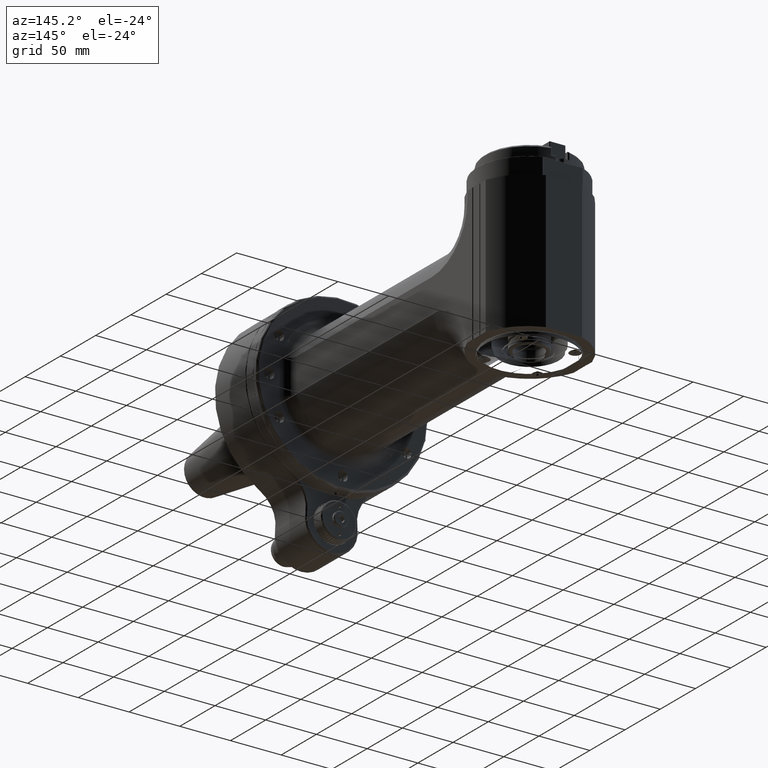
[diagram: clean part render]
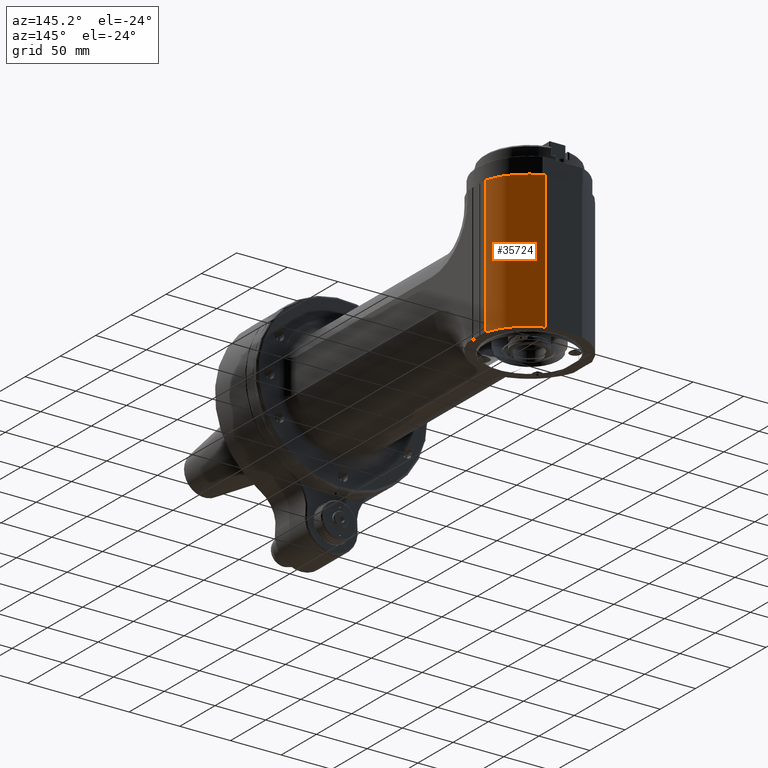
[diagram: same view with one face highlighted and labeled with its STEP entity id]
A machine part, auxiliary view. The second image highlights one B-rep face of the part: STEP entity #35724.
In plain terms, the highlighted cylindrical surface (partial cylindrical patch) has radius 55 mm, axis along (-0, 0, 1).
Its self-contained STEP definition (entity closure, byte-faithful):
#1528=LINE('',#53267,#4818);
#1531=LINE('',#53274,#4821);
#4818=VECTOR('',#42095,5.30314960629921);
#4821=VECTOR('',#42102,5.30314960629921);
#7774=CYLINDRICAL_SURFACE('',#37943,2.16535433070866);
#8518=FACE_OUTER_BOUND('',#10650,.T.);
#10650=EDGE_LOOP('',(#23991,#23992,#23993,#23994));
#12996=CIRCLE('',#37939,2.16535433070866);
#12999=CIRCLE('',#37944,2.16535433070866);
#14864=VERTEX_POINT('',#53199);
#14866=VERTEX_POINT('',#53202);
#14880=VERTEX_POINT('',#53266);
#14882=VERTEX_POINT('',#53272);
#18464=EDGE_CURVE('',#14866,#14864,#12996,.T.);
#18480=EDGE_CURVE('',#14864,#14880,#1528,.T.);
#18483=EDGE_CURVE('',#14882,#14880,#12999,.T.);
#18484=EDGE_CURVE('',#14866,#14882,#1531,.T.);
#23991=ORIENTED_EDGE('',*,*,#18480,.T.);
#23992=ORIENTED_EDGE('',*,*,#18483,.F.);
#23993=ORIENTED_EDGE('',*,*,#18484,.F.);
#23994=ORIENTED_EDGE('',*,*,#18464,.T.);
#35724=ADVANCED_FACE('',(#8518),#7774,.T.);
#37939=AXIS2_PLACEMENT_3D('',#53203,#42075,#42076);
#37943=AXIS2_PLACEMENT_3D('',#53271,#42098,#42099);
#37944=AXIS2_PLACEMENT_3D('',#53273,#42100,#42101);
#42075=DIRECTION('center_axis',(0.,0.,1.));
#42076=DIRECTION('ref_axis',(0.954545454545451,0.298065387468285,0.));
#42095=DIRECTION('',(0.,0.,1.));
#42098=DIRECTION('center_axis',(0.,0.,1.));
#42099=DIRECTION('ref_axis',(1.,0.,0.));
#42100=DIRECTION('center_axis',(0.,0.,1.));
#42101=DIRECTION('ref_axis',(0.954545454545451,0.298065387468285,0.));
#42102=DIRECTION('',(0.,0.,1.));
#53199=CARTESIAN_POINT('',(0.705372947526378,14.251968503937,-2.36220472440945));
#53202=CARTESIAN_POINT('',(2.06692913385827,12.8501415870394,-2.36220472440945));
#53203=CARTESIAN_POINT('Origin',(7.47323834125197E-16,12.2047244094488,
-2.36220472440945));
#53266=CARTESIAN_POINT('',(0.705372947526378,14.251968503937,2.94094488188976));
#53267=CARTESIAN_POINT('',(0.705372947526378,14.251968503937,-2.36220472440945));
#53271=CARTESIAN_POINT('Origin',(7.47323834125197E-16,12.2047244094488,
-3.1496062992126));
#53272=CARTESIAN_POINT('',(2.06692913385827,12.8501415870394,2.94094488188976));
#53273=CARTESIAN_POINT('Origin',(7.47323834125197E-16,12.2047244094488,
2.94094488188976));
#53274=CARTESIAN_POINT('',(2.06692913385827,12.8501415870394,-2.36220472440945));